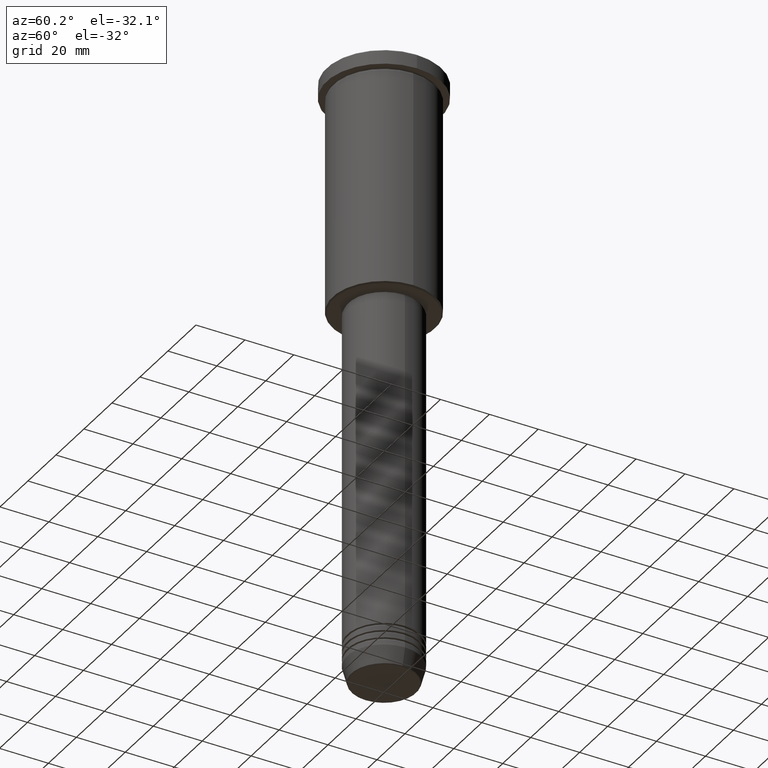
[diagram: clean part render]
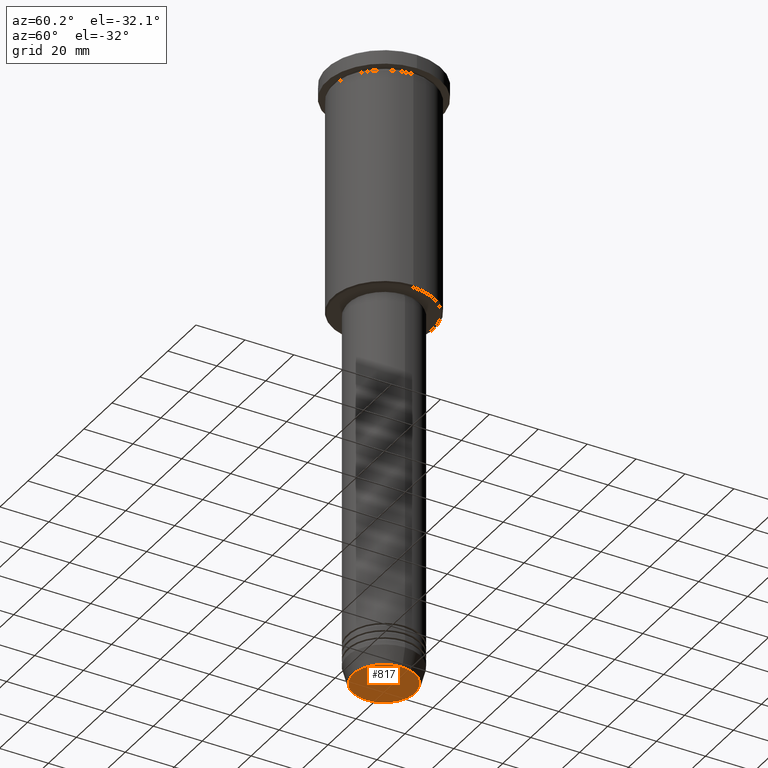
[diagram: same view with one face highlighted and labeled with its STEP entity id]
A machine part, auxiliary view. The second image highlights one B-rep face of the part: STEP entity #817.
In plain terms, the highlighted planar face has unit normal (0, -0, 1).
Its self-contained STEP definition (entity closure, byte-faithful):
#3 = FACE_OUTER_BOUND ( 'NONE', #152, .T. ) ;
#78 = CARTESIAN_POINT ( 'NONE',  ( -12.74069215899266538, 1.589857736427681824E-15, -251.0000000000000000 ) ) ;
#87 = EDGE_CURVE ( 'NONE', #288, #341, #316, .T. ) ;
#107 = CARTESIAN_POINT ( 'NONE',  ( 0.000000000000000000, 0.000000000000000000, -251.0000000000000000 ) ) ;
#152 = EDGE_LOOP ( 'NONE', ( #739, #645 ) ) ;
#276 = CARTESIAN_POINT ( 'NONE',  ( 12.74069215899266538, 0.000000000000000000, -251.0000000000000000 ) ) ;
#288 = VERTEX_POINT ( 'NONE', #78 ) ;
#316 = CIRCLE ( 'NONE', #473, 12.74069215899266538 ) ;
#319 = CARTESIAN_POINT ( 'NONE',  ( 0.000000000000000000, 0.000000000000000000, -251.0000000000000000 ) ) ;
#341 = VERTEX_POINT ( 'NONE', #276 ) ;
#461 = CARTESIAN_POINT ( 'NONE',  ( 0.000000000000000000, 0.000000000000000000, -251.0000000000000000 ) ) ;
#468 = DIRECTION ( 'NONE',  ( 0.000000000000000000, -0.000000000000000000, 1.000000000000000000 ) ) ;
#473 = AXIS2_PLACEMENT_3D ( 'NONE', #319, #1047, #585 ) ;
#480 = AXIS2_PLACEMENT_3D ( 'NONE', #461, #823, #1105 ) ;
#546 = PLANE ( 'NONE',  #692 ) ;
#572 = DIRECTION ( 'NONE',  ( 1.000000000000000000, 0.000000000000000000, 0.000000000000000000 ) ) ;
#585 = DIRECTION ( 'NONE',  ( 1.000000000000000000, 0.000000000000000000, 0.000000000000000000 ) ) ;
#645 = ORIENTED_EDGE ( 'NONE', *, *, #87, .T. ) ;
#692 = AXIS2_PLACEMENT_3D ( 'NONE', #107, #468, #572 ) ;
#739 = ORIENTED_EDGE ( 'NONE', *, *, #882, .T. ) ;
#817 = ADVANCED_FACE ( 'NONE', ( #3 ), #546, .F. ) ;
#823 = DIRECTION ( 'NONE',  ( 0.000000000000000000, 0.000000000000000000, -1.000000000000000000 ) ) ;
#878 = CIRCLE ( 'NONE', #480, 12.74069215899266538 ) ;
#882 = EDGE_CURVE ( 'NONE', #341, #288, #878, .T. ) ;
#1047 = DIRECTION ( 'NONE',  ( 0.000000000000000000, 0.000000000000000000, -1.000000000000000000 ) ) ;
#1105 = DIRECTION ( 'NONE',  ( 1.000000000000000000, 0.000000000000000000, 0.000000000000000000 ) ) ;